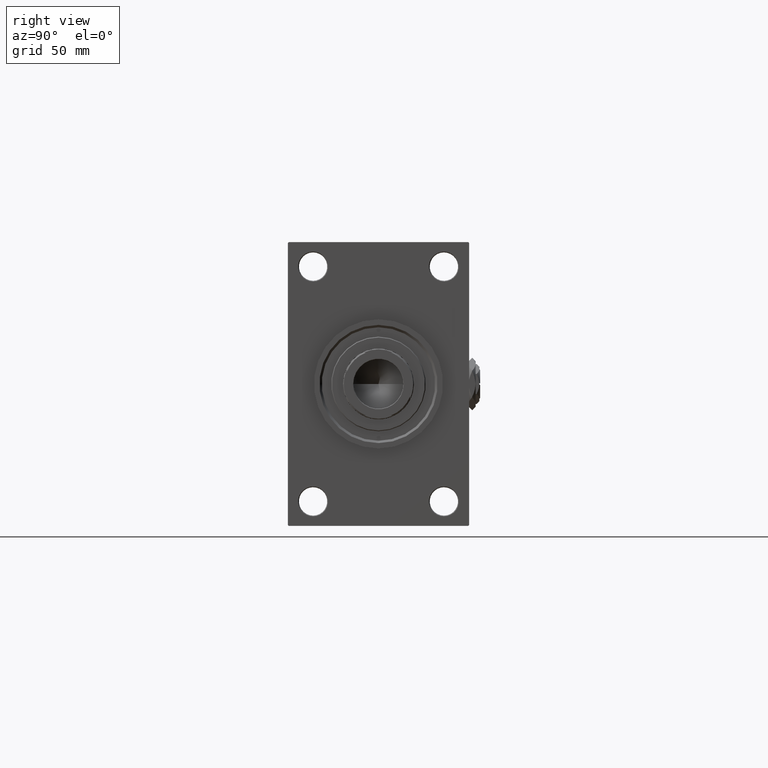
[diagram: clean part render]
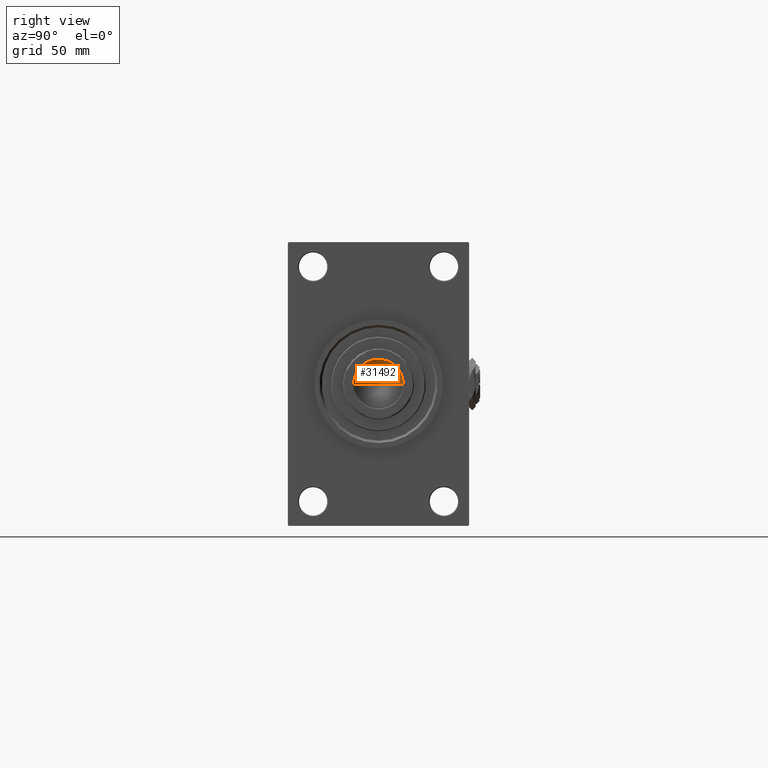
[diagram: same view with one face highlighted and labeled with its STEP entity id]
A machine part, right view. The second image highlights one B-rep face of the part: STEP entity #31492.
In plain terms, the highlighted conical surface has half-angle 59 deg.
Its self-contained STEP definition (entity closure, byte-faithful):
#710 = DIRECTION ( 'NONE',  ( 1.000000000000000000, 0.000000000000000000, 0.000000000000000000 ) ) ;
#3877 = CARTESIAN_POINT ( 'NONE',  ( -15.74999999999998934, 1.928818708657080161E-15, 291.0000000000000000 ) ) ;
#6673 = LINE ( 'NONE', #34506, #26177 ) ;
#7927 = EDGE_LOOP ( 'NONE', ( #29644, #37814, #9627 ) ) ;
#9627 = ORIENTED_EDGE ( 'NONE', *, *, #36592, .T. ) ;
#12599 = DIRECTION ( 'NONE',  ( -0.000000000000000000, -0.000000000000000000, 1.000000000000000000 ) ) ;
#12640 = VERTEX_POINT ( 'NONE', #33505 ) ;
#13560 = AXIS2_PLACEMENT_3D ( 'NONE', #16597, #32040, #47173 ) ;
#14296 = AXIS2_PLACEMENT_3D ( 'NONE', #28302, #12599, #710 ) ;
#16597 = CARTESIAN_POINT ( 'NONE',  ( 0.000000000000000000, 0.000000000000000000, 291.0000000000000000 ) ) ;
#17127 = EDGE_CURVE ( 'NONE', #12640, #26727, #6673, .T. ) ;
#23632 = DIRECTION ( 'NONE',  ( -0.8571673007021105573, 1.049727191138616477E-16, 0.5150380749100571531 ) ) ;
#26177 = VECTOR ( 'NONE', #29970, 1000.000000000000000 ) ;
#26533 = CARTESIAN_POINT ( 'NONE',  ( 15.74999999999998934, 0.000000000000000000, 291.0000000000000000 ) ) ;
#26727 = VERTEX_POINT ( 'NONE', #26533 ) ;
#28302 = CARTESIAN_POINT ( 'NONE',  ( 0.000000000000000000, 0.000000000000000000, 291.0000000000000000 ) ) ;
#29644 = ORIENTED_EDGE ( 'NONE', *, *, #17127, .F. ) ;
#29649 = CARTESIAN_POINT ( 'NONE',  ( -15.74999999999998934, 1.928818708657080161E-15, 291.0000000000000000 ) ) ;
#29970 = DIRECTION ( 'NONE',  ( 0.8571673007021105573, 0.000000000000000000, 0.5150380749100571531 ) ) ;
#31007 = VERTEX_POINT ( 'NONE', #29649 ) ;
#31492 = ADVANCED_FACE ( 'NONE', ( #43931 ), #48997, .F. ) ;
#32040 = DIRECTION ( 'NONE',  ( -0.000000000000000000, -0.000000000000000000, 1.000000000000000000 ) ) ;
#33505 = CARTESIAN_POINT ( 'NONE',  ( -1.584115414415908206E-14, 0.000000000000000000, 281.5364452503158645 ) ) ;
#33637 = EDGE_CURVE ( 'NONE', #12640, #31007, #46586, .T. ) ;
#34506 = CARTESIAN_POINT ( 'NONE',  ( 15.74999999999998934, 0.000000000000000000, 291.0000000000000000 ) ) ;
#35405 = CIRCLE ( 'NONE', #13560, 15.74999999999998934 ) ;
#36592 = EDGE_CURVE ( 'NONE', #31007, #26727, #35405, .T. ) ;
#37814 = ORIENTED_EDGE ( 'NONE', *, *, #33637, .T. ) ;
#43931 = FACE_OUTER_BOUND ( 'NONE', #7927, .T. ) ;
#45043 = VECTOR ( 'NONE', #23632, 1000.000000000000000 ) ;
#46586 = LINE ( 'NONE', #3877, #45043 ) ;
#47173 = DIRECTION ( 'NONE',  ( 1.000000000000000000, 0.000000000000000000, 0.000000000000000000 ) ) ;
#48997 = CONICAL_SURFACE ( 'NONE', #14296, 15.74999999999998934, 1.029744258676650981 ) ;